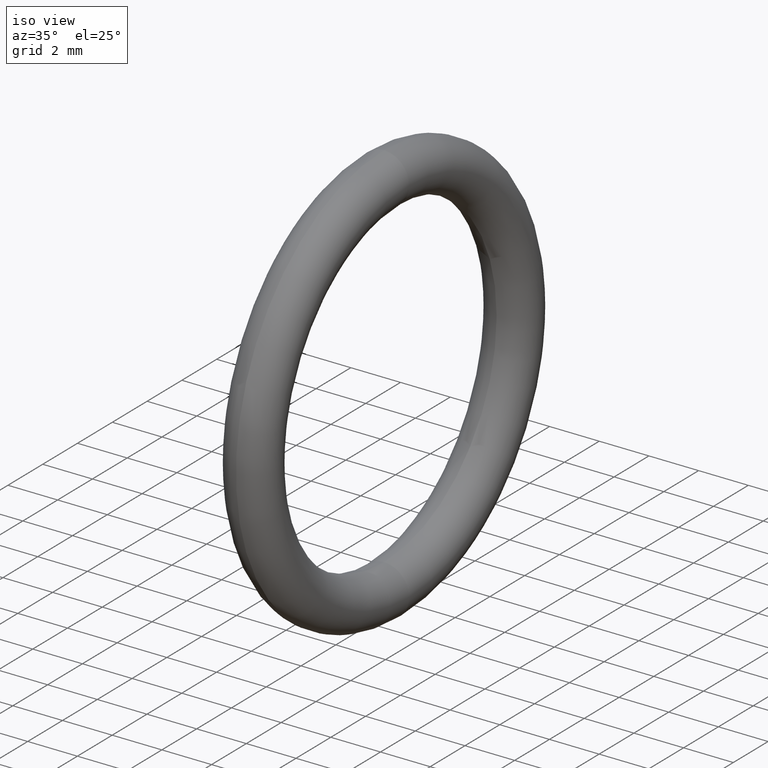
[diagram: clean part render]
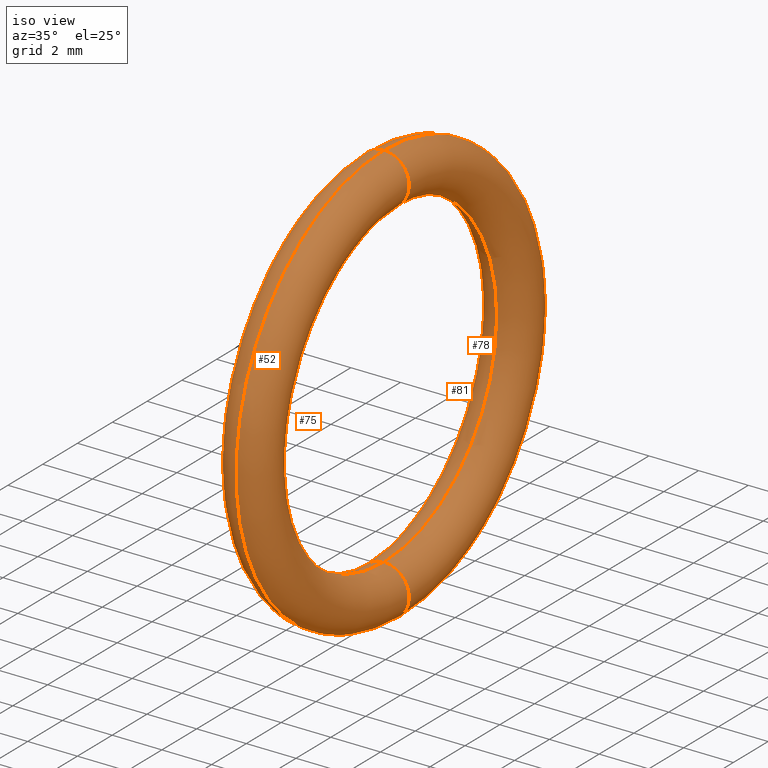
[diagram: same view with one multi-face feature highlighted, each face labeled with its STEP entity id]
A machine part, iso view. The highlighted faces form ONE feature: a constant-radius fillet chain: 4 tangent blend faces with common blend radius 1.016 mm. The faces share edges in the B-rep.
Their STEP definitions:
[1] entity #78 (Torus):
#17 = CARTESIAN_POINT ( 'NONE',  ( 0.1000000000000000500, 4.102566777143632800E-017, -0.3349999999999999600 ) ) ;
#18 = CARTESIAN_POINT ( 'NONE',  ( 0.1000000000000000500, 3.122849337825750500E-017, -0.2550000000000000000 ) ) ;
#23 = VERTEX_POINT ( 'NONE', #45 ) ;
#29 = DIRECTION ( 'NONE',  ( 0.0000000000000000000, 0.0000000000000000000, 1.000000000000000000 ) ) ;
#30 = DIRECTION ( 'NONE',  ( -1.000000000000000000, 0.0000000000000000000, 0.0000000000000000000 ) ) ;
#31 = AXIS2_PLACEMENT_3D ( 'NONE', #39, #30, #29 ) ;
#32 = CIRCLE ( 'NONE', #31, 0.2550000000000000000 ) ;
#34 = DIRECTION ( 'NONE',  ( 0.0000000000000000000, 0.0000000000000000000, 1.000000000000000000 ) ) ;
#35 = DIRECTION ( 'NONE',  ( -1.000000000000000000, 0.0000000000000000000, 0.0000000000000000000 ) ) ;
#36 = CARTESIAN_POINT ( 'NONE',  ( 0.1000000000000000500, 0.0000000000000000000, 0.0000000000000000000 ) ) ;
#37 = AXIS2_PLACEMENT_3D ( 'NONE', #36, #35, #34 ) ;
#38 = CIRCLE ( 'NONE', #37, 0.3349999999999999600 ) ;
#39 = CARTESIAN_POINT ( 'NONE',  ( 0.1000000000000000500, 0.0000000000000000000, 0.0000000000000000000 ) ) ;
#45 = CARTESIAN_POINT ( 'NONE',  ( 0.1000000000000000500, 0.0000000000000000000, 0.2550000000000000000 ) ) ;
#48 = VERTEX_POINT ( 'NONE', #18 ) ;
#50 = VERTEX_POINT ( 'NONE', #17 ) ;
#57 = VERTEX_POINT ( 'NONE', #101 ) ;
#62 = FACE_OUTER_BOUND ( 'NONE', #79, .T. ) ;
#64 = DIRECTION ( 'NONE',  ( 0.0000000000000000000, 0.0000000000000000000, -1.000000000000000000 ) ) ;
#65 = DIRECTION ( 'NONE',  ( 0.0000000000000000000, -1.000000000000000000, 0.0000000000000000000 ) ) ;
#66 = AXIS2_PLACEMENT_3D ( 'NONE', #96, #65, #64 ) ;
#73 = EDGE_CURVE ( 'NONE', #48, #50, #95, .T. ) ;
#74 = EDGE_CURVE ( 'NONE', #23, #57, #90, .T. ) ;
#77 = ORIENTED_EDGE ( 'NONE', *, *, #89, .T. ) ;
#78 = ADVANCED_FACE ( 'NONE', ( #62 ), #110, .T. ) ;
#79 = EDGE_LOOP ( 'NONE', ( #85, #80, #77, #84 ) ) ;
#80 = ORIENTED_EDGE ( 'NONE', *, *, #74, .F. ) ;
#84 = ORIENTED_EDGE ( 'NONE', *, *, #73, .T. ) ;
#85 = ORIENTED_EDGE ( 'NONE', *, *, #88, .F. ) ;
#88 = EDGE_CURVE ( 'NONE', #57, #50, #38, .T. ) ;
#89 = EDGE_CURVE ( 'NONE', #23, #48, #32, .T. ) ;
#90 = CIRCLE ( 'NONE', #66, 0.03999999999999998000 ) ;
#91 = DIRECTION ( 'NONE',  ( 0.0000000000000000000, -1.224646799147353900E-016, 1.000000000000000000 ) ) ;
#92 = DIRECTION ( 'NONE',  ( 0.0000000000000000000, 1.000000000000000000, 1.224646799147353200E-016 ) ) ;
#93 = CARTESIAN_POINT ( 'NONE',  ( 0.1000000000000000500, 3.612708057484692000E-017, -0.2949999999999999800 ) ) ;
#94 = AXIS2_PLACEMENT_3D ( 'NONE', #93, #92, #91 ) ;
#95 = CIRCLE ( 'NONE', #94, 0.03999999999999998000 ) ;
#96 = CARTESIAN_POINT ( 'NONE',  ( 0.1000000000000000500, 0.0000000000000000000, 0.2949999999999999800 ) ) ;
#101 = CARTESIAN_POINT ( 'NONE',  ( 0.1000000000000000500, 0.0000000000000000000, 0.3349999999999999600 ) ) ;
#105 = DIRECTION ( 'NONE',  ( 0.0000000000000000000, 0.0000000000000000000, 1.000000000000000000 ) ) ;
#106 = DIRECTION ( 'NONE',  ( -1.000000000000000000, 0.0000000000000000000, 0.0000000000000000000 ) ) ;
#107 = CARTESIAN_POINT ( 'NONE',  ( 0.1000000000000000500, 0.0000000000000000000, 0.0000000000000000000 ) ) ;
#108 = AXIS2_PLACEMENT_3D ( 'NONE', #107, #106, #105 ) ;
#110 = TOROIDAL_SURFACE ( 'NONE', #108, 0.2949999999999999800, 0.04000000000000000100 ) ;
[2] entity #75 (Torus):
#12 = DIRECTION ( 'NONE',  ( -1.000000000000000000, 0.0000000000000000000, 0.0000000000000000000 ) ) ;
#13 = CARTESIAN_POINT ( 'NONE',  ( 0.1000000000000000500, 0.0000000000000000000, 0.0000000000000000000 ) ) ;
#14 = AXIS2_PLACEMENT_3D ( 'NONE', #13, #12, #103 ) ;
#15 = CIRCLE ( 'NONE', #14, 0.3349999999999999600 ) ;
#17 = CARTESIAN_POINT ( 'NONE',  ( 0.1000000000000000500, 4.102566777143632800E-017, -0.3349999999999999600 ) ) ;
#18 = CARTESIAN_POINT ( 'NONE',  ( 0.1000000000000000500, 3.122849337825750500E-017, -0.2550000000000000000 ) ) ;
#23 = VERTEX_POINT ( 'NONE', #45 ) ;
#24 = DIRECTION ( 'NONE',  ( 0.0000000000000000000, 0.0000000000000000000, 1.000000000000000000 ) ) ;
#25 = DIRECTION ( 'NONE',  ( -1.000000000000000000, 0.0000000000000000000, 0.0000000000000000000 ) ) ;
#26 = AXIS2_PLACEMENT_3D ( 'NONE', #33, #25, #24 ) ;
#27 = CIRCLE ( 'NONE', #26, 0.2550000000000000000 ) ;
#33 = CARTESIAN_POINT ( 'NONE',  ( 0.1000000000000000500, 0.0000000000000000000, 0.0000000000000000000 ) ) ;
#45 = CARTESIAN_POINT ( 'NONE',  ( 0.1000000000000000500, 0.0000000000000000000, 0.2550000000000000000 ) ) ;
#48 = VERTEX_POINT ( 'NONE', #18 ) ;
#50 = VERTEX_POINT ( 'NONE', #17 ) ;
#51 = EDGE_CURVE ( 'NONE', #50, #57, #15, .T. ) ;
#54 = ORIENTED_EDGE ( 'NONE', *, *, #112, .T. ) ;
#56 = EDGE_LOOP ( 'NONE', ( #86, #76, #54, #72 ) ) ;
#57 = VERTEX_POINT ( 'NONE', #101 ) ;
#58 = DIRECTION ( 'NONE',  ( 0.0000000000000000000, 0.0000000000000000000, 1.000000000000000000 ) ) ;
#59 = DIRECTION ( 'NONE',  ( -1.000000000000000000, 0.0000000000000000000, 0.0000000000000000000 ) ) ;
#60 = AXIS2_PLACEMENT_3D ( 'NONE', #63, #59, #58 ) ;
#61 = TOROIDAL_SURFACE ( 'NONE', #60, 0.2949999999999999800, 0.04000000000000000100 ) ;
#63 = CARTESIAN_POINT ( 'NONE',  ( 0.1000000000000000500, 0.0000000000000000000, 0.0000000000000000000 ) ) ;
#64 = DIRECTION ( 'NONE',  ( 0.0000000000000000000, 0.0000000000000000000, -1.000000000000000000 ) ) ;
#65 = DIRECTION ( 'NONE',  ( 0.0000000000000000000, -1.000000000000000000, 0.0000000000000000000 ) ) ;
#66 = AXIS2_PLACEMENT_3D ( 'NONE', #96, #65, #64 ) ;
#67 = FACE_OUTER_BOUND ( 'NONE', #56, .T. ) ;
#72 = ORIENTED_EDGE ( 'NONE', *, *, #74, .T. ) ;
#73 = EDGE_CURVE ( 'NONE', #48, #50, #95, .T. ) ;
#74 = EDGE_CURVE ( 'NONE', #23, #57, #90, .T. ) ;
#75 = ADVANCED_FACE ( 'NONE', ( #67 ), #61, .T. ) ;
#76 = ORIENTED_EDGE ( 'NONE', *, *, #73, .F. ) ;
#86 = ORIENTED_EDGE ( 'NONE', *, *, #51, .F. ) ;
#90 = CIRCLE ( 'NONE', #66, 0.03999999999999998000 ) ;
#91 = DIRECTION ( 'NONE',  ( 0.0000000000000000000, -1.224646799147353900E-016, 1.000000000000000000 ) ) ;
#92 = DIRECTION ( 'NONE',  ( 0.0000000000000000000, 1.000000000000000000, 1.224646799147353200E-016 ) ) ;
#93 = CARTESIAN_POINT ( 'NONE',  ( 0.1000000000000000500, 3.612708057484692000E-017, -0.2949999999999999800 ) ) ;
#94 = AXIS2_PLACEMENT_3D ( 'NONE', #93, #92, #91 ) ;
#95 = CIRCLE ( 'NONE', #94, 0.03999999999999998000 ) ;
#96 = CARTESIAN_POINT ( 'NONE',  ( 0.1000000000000000500, 0.0000000000000000000, 0.2949999999999999800 ) ) ;
#101 = CARTESIAN_POINT ( 'NONE',  ( 0.1000000000000000500, 0.0000000000000000000, 0.3349999999999999600 ) ) ;
#103 = DIRECTION ( 'NONE',  ( 0.0000000000000000000, 0.0000000000000000000, 1.000000000000000000 ) ) ;
#112 = EDGE_CURVE ( 'NONE', #48, #23, #27, .T. ) ;
[3] entity #52 (Torus):
#8 = DIRECTION ( 'NONE',  ( 0.0000000000000000000, 0.0000000000000000000, -1.000000000000000000 ) ) ;
#9 = DIRECTION ( 'NONE',  ( 0.0000000000000000000, -1.000000000000000000, 0.0000000000000000000 ) ) ;
#10 = AXIS2_PLACEMENT_3D ( 'NONE', #28, #9, #8 ) ;
#11 = CIRCLE ( 'NONE', #10, 0.03999999999999998000 ) ;
#12 = DIRECTION ( 'NONE',  ( -1.000000000000000000, 0.0000000000000000000, 0.0000000000000000000 ) ) ;
#13 = CARTESIAN_POINT ( 'NONE',  ( 0.1000000000000000500, 0.0000000000000000000, 0.0000000000000000000 ) ) ;
#14 = AXIS2_PLACEMENT_3D ( 'NONE', #13, #12, #103 ) ;
#15 = CIRCLE ( 'NONE', #14, 0.3349999999999999600 ) ;
#16 = FACE_OUTER_BOUND ( 'NONE', #53, .T. ) ;
#17 = CARTESIAN_POINT ( 'NONE',  ( 0.1000000000000000500, 4.102566777143632800E-017, -0.3349999999999999600 ) ) ;
#18 = CARTESIAN_POINT ( 'NONE',  ( 0.1000000000000000500, 3.122849337825750500E-017, -0.2550000000000000000 ) ) ;
#19 = DIRECTION ( 'NONE',  ( 0.0000000000000000000, -1.224646799147353900E-016, 1.000000000000000000 ) ) ;
#20 = DIRECTION ( 'NONE',  ( 0.0000000000000000000, 1.000000000000000000, 1.224646799147353200E-016 ) ) ;
#21 = CARTESIAN_POINT ( 'NONE',  ( 0.1000000000000000500, 3.612708057484692000E-017, -0.2949999999999999800 ) ) ;
#22 = AXIS2_PLACEMENT_3D ( 'NONE', #21, #20, #19 ) ;
#23 = VERTEX_POINT ( 'NONE', #45 ) ;
#24 = DIRECTION ( 'NONE',  ( 0.0000000000000000000, 0.0000000000000000000, 1.000000000000000000 ) ) ;
#25 = DIRECTION ( 'NONE',  ( -1.000000000000000000, 0.0000000000000000000, 0.0000000000000000000 ) ) ;
#26 = AXIS2_PLACEMENT_3D ( 'NONE', #33, #25, #24 ) ;
#27 = CIRCLE ( 'NONE', #26, 0.2550000000000000000 ) ;
#28 = CARTESIAN_POINT ( 'NONE',  ( 0.1000000000000000500, 0.0000000000000000000, 0.2949999999999999800 ) ) ;
#33 = CARTESIAN_POINT ( 'NONE',  ( 0.1000000000000000500, 0.0000000000000000000, 0.0000000000000000000 ) ) ;
#44 = CIRCLE ( 'NONE', #22, 0.03999999999999998000 ) ;
#45 = CARTESIAN_POINT ( 'NONE',  ( 0.1000000000000000500, 0.0000000000000000000, 0.2550000000000000000 ) ) ;
#46 = ORIENTED_EDGE ( 'NONE', *, *, #113, .T. ) ;
#47 = EDGE_CURVE ( 'NONE', #50, #48, #44, .T. ) ;
#48 = VERTEX_POINT ( 'NONE', #18 ) ;
#49 = ORIENTED_EDGE ( 'NONE', *, *, #47, .F. ) ;
#50 = VERTEX_POINT ( 'NONE', #17 ) ;
#51 = EDGE_CURVE ( 'NONE', #50, #57, #15, .T. ) ;
#52 = ADVANCED_FACE ( 'NONE', ( #16 ), #100, .T. ) ;
#53 = EDGE_LOOP ( 'NONE', ( #49, #114, #46, #111 ) ) ;
#57 = VERTEX_POINT ( 'NONE', #101 ) ;
#97 = DIRECTION ( 'NONE',  ( 0.0000000000000000000, 0.0000000000000000000, 1.000000000000000000 ) ) ;
#98 = DIRECTION ( 'NONE',  ( -1.000000000000000000, 0.0000000000000000000, 0.0000000000000000000 ) ) ;
#99 = AXIS2_PLACEMENT_3D ( 'NONE', #102, #98, #97 ) ;
#100 = TOROIDAL_SURFACE ( 'NONE', #99, 0.2949999999999999800, 0.04000000000000000100 ) ;
#101 = CARTESIAN_POINT ( 'NONE',  ( 0.1000000000000000500, 0.0000000000000000000, 0.3349999999999999600 ) ) ;
#102 = CARTESIAN_POINT ( 'NONE',  ( 0.1000000000000000500, 0.0000000000000000000, 0.0000000000000000000 ) ) ;
#103 = DIRECTION ( 'NONE',  ( 0.0000000000000000000, 0.0000000000000000000, 1.000000000000000000 ) ) ;
#111 = ORIENTED_EDGE ( 'NONE', *, *, #112, .F. ) ;
#112 = EDGE_CURVE ( 'NONE', #48, #23, #27, .T. ) ;
#113 = EDGE_CURVE ( 'NONE', #57, #23, #11, .T. ) ;
#114 = ORIENTED_EDGE ( 'NONE', *, *, #51, .T. ) ;
[4] entity #81 (Torus):
#8 = DIRECTION ( 'NONE',  ( 0.0000000000000000000, 0.0000000000000000000, -1.000000000000000000 ) ) ;
#9 = DIRECTION ( 'NONE',  ( 0.0000000000000000000, -1.000000000000000000, 0.0000000000000000000 ) ) ;
#10 = AXIS2_PLACEMENT_3D ( 'NONE', #28, #9, #8 ) ;
#11 = CIRCLE ( 'NONE', #10, 0.03999999999999998000 ) ;
#17 = CARTESIAN_POINT ( 'NONE',  ( 0.1000000000000000500, 4.102566777143632800E-017, -0.3349999999999999600 ) ) ;
#18 = CARTESIAN_POINT ( 'NONE',  ( 0.1000000000000000500, 3.122849337825750500E-017, -0.2550000000000000000 ) ) ;
#19 = DIRECTION ( 'NONE',  ( 0.0000000000000000000, -1.224646799147353900E-016, 1.000000000000000000 ) ) ;
#20 = DIRECTION ( 'NONE',  ( 0.0000000000000000000, 1.000000000000000000, 1.224646799147353200E-016 ) ) ;
#21 = CARTESIAN_POINT ( 'NONE',  ( 0.1000000000000000500, 3.612708057484692000E-017, -0.2949999999999999800 ) ) ;
#22 = AXIS2_PLACEMENT_3D ( 'NONE', #21, #20, #19 ) ;
#23 = VERTEX_POINT ( 'NONE', #45 ) ;
#28 = CARTESIAN_POINT ( 'NONE',  ( 0.1000000000000000500, 0.0000000000000000000, 0.2949999999999999800 ) ) ;
#29 = DIRECTION ( 'NONE',  ( 0.0000000000000000000, 0.0000000000000000000, 1.000000000000000000 ) ) ;
#30 = DIRECTION ( 'NONE',  ( -1.000000000000000000, 0.0000000000000000000, 0.0000000000000000000 ) ) ;
#31 = AXIS2_PLACEMENT_3D ( 'NONE', #39, #30, #29 ) ;
#32 = CIRCLE ( 'NONE', #31, 0.2550000000000000000 ) ;
#34 = DIRECTION ( 'NONE',  ( 0.0000000000000000000, 0.0000000000000000000, 1.000000000000000000 ) ) ;
#35 = DIRECTION ( 'NONE',  ( -1.000000000000000000, 0.0000000000000000000, 0.0000000000000000000 ) ) ;
#36 = CARTESIAN_POINT ( 'NONE',  ( 0.1000000000000000500, 0.0000000000000000000, 0.0000000000000000000 ) ) ;
#37 = AXIS2_PLACEMENT_3D ( 'NONE', #36, #35, #34 ) ;
#38 = CIRCLE ( 'NONE', #37, 0.3349999999999999600 ) ;
#39 = CARTESIAN_POINT ( 'NONE',  ( 0.1000000000000000500, 0.0000000000000000000, 0.0000000000000000000 ) ) ;
#40 = DIRECTION ( 'NONE',  ( 0.0000000000000000000, 0.0000000000000000000, 1.000000000000000000 ) ) ;
#41 = DIRECTION ( 'NONE',  ( -1.000000000000000000, 0.0000000000000000000, 0.0000000000000000000 ) ) ;
#42 = CARTESIAN_POINT ( 'NONE',  ( 0.1000000000000000500, 0.0000000000000000000, 0.0000000000000000000 ) ) ;
#43 = AXIS2_PLACEMENT_3D ( 'NONE', #42, #41, #40 ) ;
#44 = CIRCLE ( 'NONE', #22, 0.03999999999999998000 ) ;
#45 = CARTESIAN_POINT ( 'NONE',  ( 0.1000000000000000500, 0.0000000000000000000, 0.2550000000000000000 ) ) ;
#47 = EDGE_CURVE ( 'NONE', #50, #48, #44, .T. ) ;
#48 = VERTEX_POINT ( 'NONE', #18 ) ;
#50 = VERTEX_POINT ( 'NONE', #17 ) ;
#57 = VERTEX_POINT ( 'NONE', #101 ) ;
#69 = ORIENTED_EDGE ( 'NONE', *, *, #88, .T. ) ;
#70 = EDGE_LOOP ( 'NONE', ( #71, #69, #87, #83 ) ) ;
#71 = ORIENTED_EDGE ( 'NONE', *, *, #113, .F. ) ;
#81 = ADVANCED_FACE ( 'NONE', ( #109 ), #104, .T. ) ;
#83 = ORIENTED_EDGE ( 'NONE', *, *, #89, .F. ) ;
#87 = ORIENTED_EDGE ( 'NONE', *, *, #47, .T. ) ;
#88 = EDGE_CURVE ( 'NONE', #57, #50, #38, .T. ) ;
#89 = EDGE_CURVE ( 'NONE', #23, #48, #32, .T. ) ;
#101 = CARTESIAN_POINT ( 'NONE',  ( 0.1000000000000000500, 0.0000000000000000000, 0.3349999999999999600 ) ) ;
#104 = TOROIDAL_SURFACE ( 'NONE', #43, 0.2949999999999999800, 0.04000000000000000100 ) ;
#109 = FACE_OUTER_BOUND ( 'NONE', #70, .T. ) ;
#113 = EDGE_CURVE ( 'NONE', #57, #23, #11, .T. ) ;